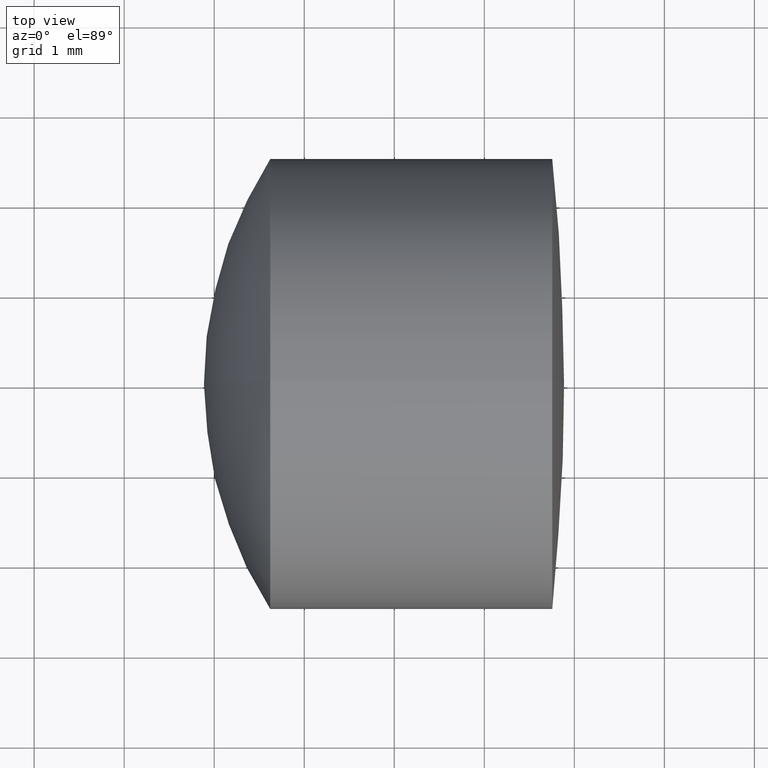
[diagram: clean part render]
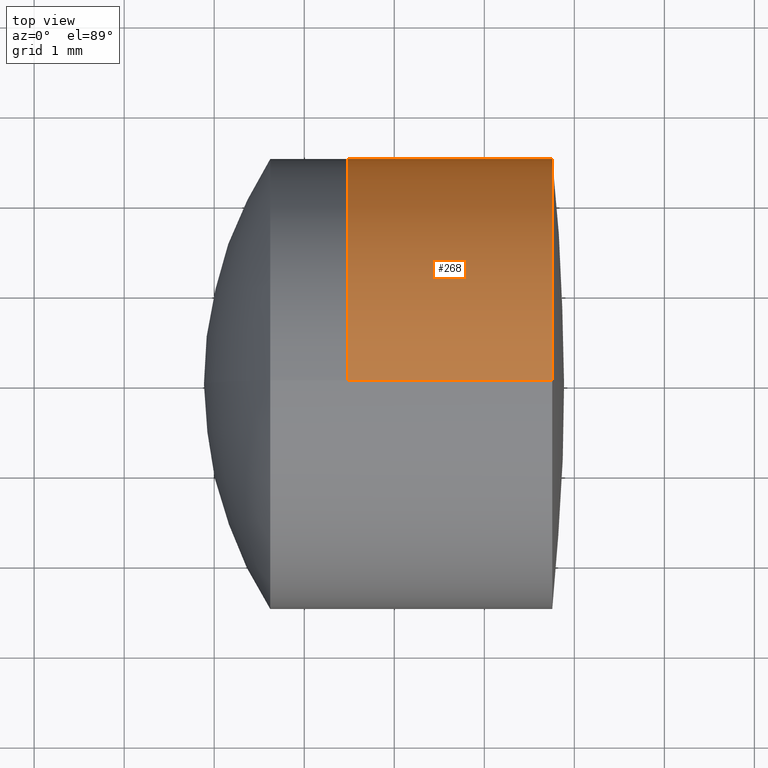
[diagram: same view with one face highlighted and labeled with its STEP entity id]
A machine part, top view. The second image highlights one B-rep face of the part: STEP entity #268.
In plain terms, the highlighted cylindrical surface (partial cylindrical patch) has radius 2.5 mm, axis along (-1, -0, -0).
Its self-contained STEP definition (entity closure, byte-faithful):
#1 = EDGE_LOOP ( 'NONE', ( #222, #309, #181, #326 ) ) ;
#10 = CIRCLE ( 'NONE', #243, 2.499999999999997800 ) ;
#11 = CARTESIAN_POINT ( 'NONE',  ( 1.479348394177701900, 0.0000000000000000000, -2.499999999999998200 ) ) ;
#13 = AXIS2_PLACEMENT_3D ( 'NONE', #150, #295, #61 ) ;
#15 = EDGE_CURVE ( 'NONE', #32, #287, #10, .T. ) ;
#18 = CARTESIAN_POINT ( 'NONE',  ( 3.754799295365029100, -3.061616997868377200E-016, 2.499999999999995100 ) ) ;
#32 = VERTEX_POINT ( 'NONE', #18 ) ;
#33 = CARTESIAN_POINT ( 'NONE',  ( 3.754799295365026900, 0.0000000000000000000, 0.0000000000000000000 ) ) ;
#41 = DIRECTION ( 'NONE',  ( 0.0000000000000000000, 0.0000000000000000000, 1.000000000000000000 ) ) ;
#46 = VERTEX_POINT ( 'NONE', #212 ) ;
#56 = EDGE_CURVE ( 'NONE', #32, #46, #226, .T. ) ;
#61 = DIRECTION ( 'NONE',  ( 0.0000000000000000000, 0.0000000000000000000, 1.000000000000000000 ) ) ;
#78 = CARTESIAN_POINT ( 'NONE',  ( 3.754799295365029100, 0.0000000000000000000, -2.499999999999995100 ) ) ;
#89 = DIRECTION ( 'NONE',  ( 0.0000000000000000000, 0.0000000000000000000, 1.000000000000000000 ) ) ;
#117 = CARTESIAN_POINT ( 'NONE',  ( 1.479348394177702400, 0.0000000000000000000, 0.0000000000000000000 ) ) ;
#129 = VECTOR ( 'NONE', #137, 1000.000000000000000 ) ;
#137 = DIRECTION ( 'NONE',  ( -1.000000000000000000, -0.0000000000000000000, -0.0000000000000000000 ) ) ;
#142 = CYLINDRICAL_SURFACE ( 'NONE', #13, 2.499999999999997800 ) ;
#150 = CARTESIAN_POINT ( 'NONE',  ( -0.5519199926577972300, 0.0000000000000000000, 0.0000000000000000000 ) ) ;
#176 = VERTEX_POINT ( 'NONE', #11 ) ;
#181 = ORIENTED_EDGE ( 'NONE', *, *, #208, .F. ) ;
#197 = DIRECTION ( 'NONE',  ( -1.000000000000000000, -0.0000000000000000000, -0.0000000000000000000 ) ) ;
#198 = AXIS2_PLACEMENT_3D ( 'NONE', #117, #321, #41 ) ;
#203 = EDGE_CURVE ( 'NONE', #287, #176, #239, .T. ) ;
#208 = EDGE_CURVE ( 'NONE', #46, #176, #262, .T. ) ;
#212 = CARTESIAN_POINT ( 'NONE',  ( 1.479348394177701900, -3.061616997868381200E-016, 2.499999999999998200 ) ) ;
#222 = ORIENTED_EDGE ( 'NONE', *, *, #15, .T. ) ;
#226 = LINE ( 'NONE', #279, #230 ) ;
#230 = VECTOR ( 'NONE', #197, 1000.000000000000000 ) ;
#239 = LINE ( 'NONE', #290, #129 ) ;
#243 = AXIS2_PLACEMENT_3D ( 'NONE', #33, #275, #89 ) ;
#262 = CIRCLE ( 'NONE', #198, 2.499999999999998200 ) ;
#268 = ADVANCED_FACE ( 'NONE', ( #323 ), #142, .T. ) ;
#275 = DIRECTION ( 'NONE',  ( -1.000000000000000000, -0.0000000000000000000, -0.0000000000000000000 ) ) ;
#279 = CARTESIAN_POINT ( 'NONE',  ( -0.5519199926577972300, 0.0000000000000000000, 2.499999999999997800 ) ) ;
#287 = VERTEX_POINT ( 'NONE', #78 ) ;
#290 = CARTESIAN_POINT ( 'NONE',  ( -0.5519199926577972300, 3.061616997868380700E-016, -2.499999999999997800 ) ) ;
#295 = DIRECTION ( 'NONE',  ( -1.000000000000000000, -0.0000000000000000000, -0.0000000000000000000 ) ) ;
#309 = ORIENTED_EDGE ( 'NONE', *, *, #203, .T. ) ;
#321 = DIRECTION ( 'NONE',  ( -1.000000000000000000, -0.0000000000000000000, -0.0000000000000000000 ) ) ;
#323 = FACE_OUTER_BOUND ( 'NONE', #1, .T. ) ;
#326 = ORIENTED_EDGE ( 'NONE', *, *, #56, .F. ) ;